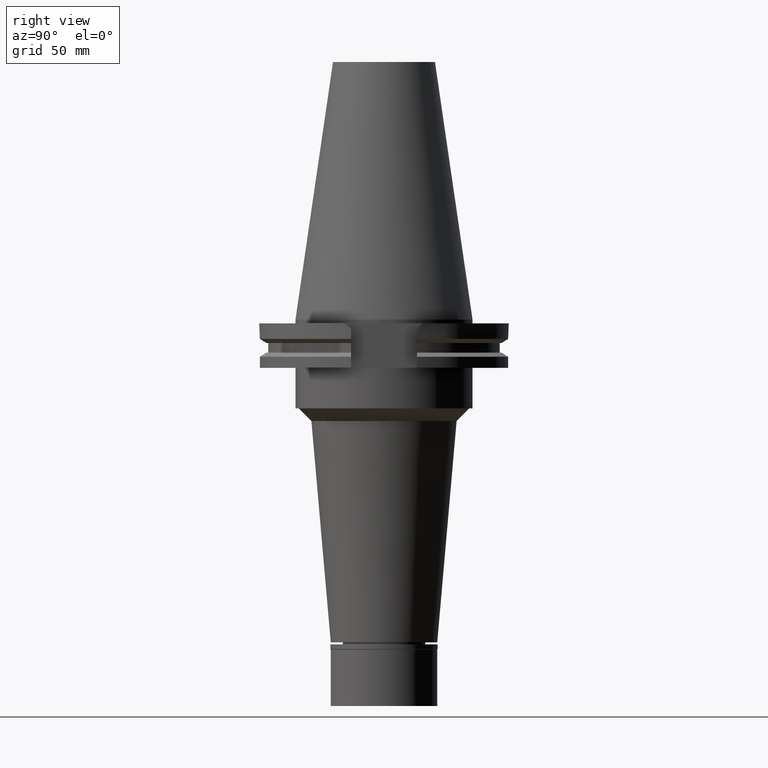
[diagram: clean part render]
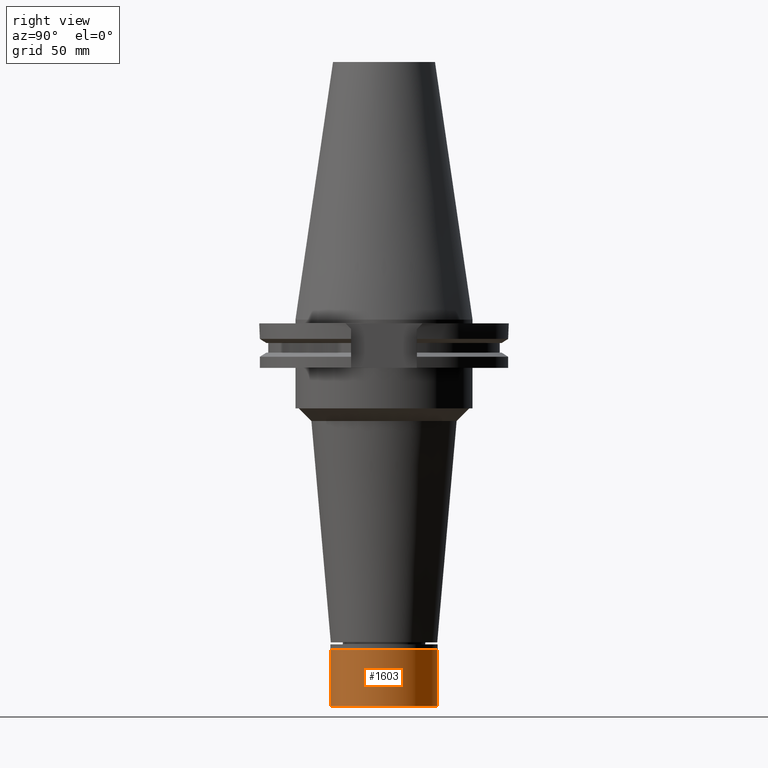
[diagram: same view with one face highlighted and labeled with its STEP entity id]
A machine part, right view. The second image highlights one B-rep face of the part: STEP entity #1603.
In plain terms, the highlighted cylindrical surface (partial cylindrical patch) has radius 21 mm, axis along (0, 0, -1).
Its self-contained STEP definition (entity closure, byte-faithful):
#82 = AXIS2_PLACEMENT_3D ( 'NONE', #3326, #1225, #1005 ) ;
#94 = DIRECTION ( 'NONE',  ( 0.0000000000000000000, 0.0000000000000000000, -1.000000000000000000 ) ) ;
#110 = DIRECTION ( 'NONE',  ( 0.0000000000000000000, 0.0000000000000000000, -1.000000000000000000 ) ) ;
#261 = EDGE_CURVE ( 'NONE', #1181, #2477, #299, .T. ) ;
#299 = LINE ( 'NONE', #963, #763 ) ;
#412 = CIRCLE ( 'NONE', #953, 21.00000000000000000 ) ;
#521 = CARTESIAN_POINT ( 'NONE',  ( 0.0000000000000000000, 21.00000000000000000, -24.29999999999999716 ) ) ;
#537 = AXIS2_PLACEMENT_3D ( 'NONE', #2828, #1097, #3133 ) ;
#682 = VERTEX_POINT ( 'NONE', #893 ) ;
#763 = VECTOR ( 'NONE', #94, 1000.000000000000000 ) ;
#893 = CARTESIAN_POINT ( 'NONE',  ( 0.0000000000000000000, 21.00000000000000000, -2.000000000000000000 ) ) ;
#953 = AXIS2_PLACEMENT_3D ( 'NONE', #2804, #1497, #1749 ) ;
#963 = CARTESIAN_POINT ( 'NONE',  ( 0.0000000000000000000, -21.00000000000000000, -2.000000000000000000 ) ) ;
#1005 = DIRECTION ( 'NONE',  ( 0.0000000000000000000, 1.000000000000000000, 0.0000000000000000000 ) ) ;
#1085 = VECTOR ( 'NONE', #110, 1000.000000000000000 ) ;
#1097 = DIRECTION ( 'NONE',  ( 0.0000000000000000000, 0.0000000000000000000, -1.000000000000000000 ) ) ;
#1109 = CYLINDRICAL_SURFACE ( 'NONE', #537, 21.00000000000000000 ) ;
#1181 = VERTEX_POINT ( 'NONE', #1684 ) ;
#1225 = DIRECTION ( 'NONE',  ( 0.0000000000000000000, 0.0000000000000000000, -1.000000000000000000 ) ) ;
#1333 = FACE_OUTER_BOUND ( 'NONE', #1532, .T. ) ;
#1497 = DIRECTION ( 'NONE',  ( 0.0000000000000000000, 0.0000000000000000000, 1.000000000000000000 ) ) ;
#1502 = EDGE_CURVE ( 'NONE', #2477, #2092, #412, .T. ) ;
#1532 = EDGE_LOOP ( 'NONE', ( #3126, #1858, #2765, #2520 ) ) ;
#1566 = EDGE_CURVE ( 'NONE', #682, #1181, #1970, .T. ) ;
#1603 = ADVANCED_FACE ( 'NONE', ( #1333 ), #1109, .T. ) ;
#1636 = LINE ( 'NONE', #1681, #1085 ) ;
#1681 = CARTESIAN_POINT ( 'NONE',  ( 0.0000000000000000000, 21.00000000000000000, -2.000000000000000000 ) ) ;
#1684 = CARTESIAN_POINT ( 'NONE',  ( 0.0000000000000000000, -21.00000000000000000, -2.000000000000000000 ) ) ;
#1749 = DIRECTION ( 'NONE',  ( 0.0000000000000000000, -1.000000000000000000, 0.0000000000000000000 ) ) ;
#1858 = ORIENTED_EDGE ( 'NONE', *, *, #261, .T. ) ;
#1910 = CARTESIAN_POINT ( 'NONE',  ( 0.0000000000000000000, -21.00000000000000000, -24.29999999999999716 ) ) ;
#1970 = CIRCLE ( 'NONE', #82, 21.00000000000000000 ) ;
#2092 = VERTEX_POINT ( 'NONE', #521 ) ;
#2477 = VERTEX_POINT ( 'NONE', #1910 ) ;
#2520 = ORIENTED_EDGE ( 'NONE', *, *, #2872, .F. ) ;
#2765 = ORIENTED_EDGE ( 'NONE', *, *, #1502, .T. ) ;
#2804 = CARTESIAN_POINT ( 'NONE',  ( 0.0000000000000000000, 0.0000000000000000000, -24.29999999999999716 ) ) ;
#2828 = CARTESIAN_POINT ( 'NONE',  ( 0.0000000000000000000, 0.0000000000000000000, 0.0000000000000000000 ) ) ;
#2872 = EDGE_CURVE ( 'NONE', #682, #2092, #1636, .T. ) ;
#3126 = ORIENTED_EDGE ( 'NONE', *, *, #1566, .T. ) ;
#3133 = DIRECTION ( 'NONE',  ( 0.0000000000000000000, -1.000000000000000000, 0.0000000000000000000 ) ) ;
#3326 = CARTESIAN_POINT ( 'NONE',  ( 0.0000000000000000000, 0.0000000000000000000, -2.000000000000000000 ) ) ;